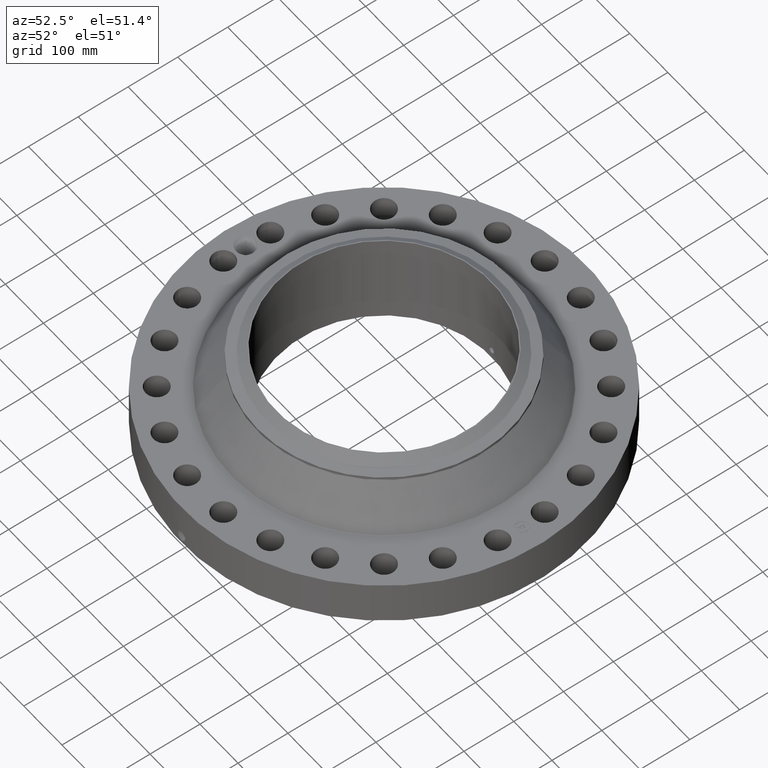
[diagram: clean part render]
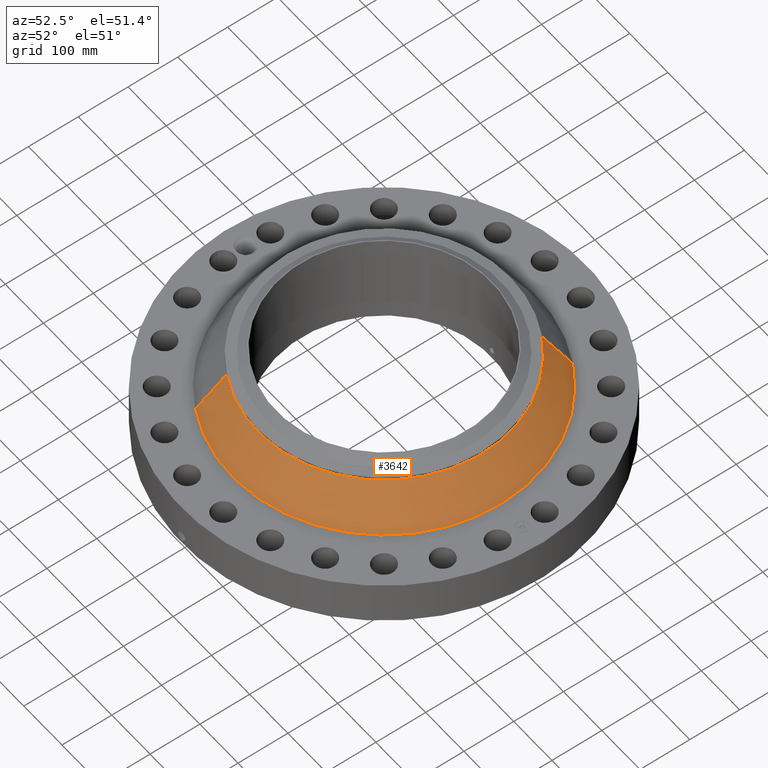
[diagram: same view with one face highlighted and labeled with its STEP entity id]
A machine part, auxiliary view. The second image highlights one B-rep face of the part: STEP entity #3642.
In plain terms, the highlighted conical surface has half-angle 32.681 deg.
Its self-contained STEP definition (entity closure, byte-faithful):
#2917=AXIS2_PLACEMENT_3D('Circle Axis2P3D',#2915,#2916,$) ;
#3615=AXIS2_PLACEMENT_3D('Cone Axis2P3D',#3612,#3613,#3614) ;
#3626=AXIS2_PLACEMENT_3D('Circle Axis2P3D',#3624,#3625,$) ;
#2912=CARTESIAN_POINT('Vertex',(5.73612767656,10.4999112821,3.80520506604)) ;
#2915=CARTESIAN_POINT('Axis2P3D Location',(0.,0.,3.80520506604)) ;
#2919=CARTESIAN_POINT('Vertex',(-5.73612767656,-10.4999112821,3.80520506604)) ;
#3612=CARTESIAN_POINT('Axis2P3D Location',(0.,0.,6.86762188479)) ;
#3617=CARTESIAN_POINT('Line Origine',(5.26519153131,9.63786845053,5.33641347541)) ;
#3621=CARTESIAN_POINT('Vertex',(4.79425538606,8.77582561894,6.86762188479)) ;
#3624=CARTESIAN_POINT('Axis2P3D Location',(0.,0.,6.86762188479)) ;
#3628=CARTESIAN_POINT('Vertex',(-4.79425538606,-8.77582561894,6.86762188479)) ;
#3631=CARTESIAN_POINT('Line Origine',(-5.26519153131,-9.63786845053,5.33641347541)) ;
#2916=DIRECTION('Axis2P3D Direction',(0.,0.,-0.0393700787402)) ;
#3613=DIRECTION('Axis2P3D Direction',(0.,0.,-0.0393700787402)) ;
#3614=DIRECTION('Axis2P3D XDirection',(-0.0188750212049,-0.0345504945626,0.)) ;
#3618=DIRECTION('Vector Direction',(0.010191714606,0.0186558084496,-0.0331374842812)) ;
#3625=DIRECTION('Axis2P3D Direction',(0.,0.,-0.0393700787402)) ;
#3632=DIRECTION('Vector Direction',(-0.010191714606,-0.0186558084496,-0.0331374842812)) ;
#3619=VECTOR('Line Direction',#3618,0.0393700787402) ;
#3633=VECTOR('Line Direction',#3632,0.0393700787402) ;
#3637=ORIENTED_EDGE('',*,*,#2921,.F.) ;
#3638=ORIENTED_EDGE('',*,*,#3623,.T.) ;
#3639=ORIENTED_EDGE('',*,*,#3630,.T.) ;
#3640=ORIENTED_EDGE('',*,*,#3635,.F.) ;
#3642=ADVANCED_FACE('PartBody',(#3641),#3616,.T.) ;
#2918=CIRCLE('generated circle',#2917,11.9645851434) ;
#3627=CIRCLE('generated circle',#3626,10.) ;
#3616=CONICAL_SURFACE('Cone',#3615,10.,0.570386951434) ;
#2921=EDGE_CURVE('',#2913,#2920,#2918,.T.) ;
#3623=EDGE_CURVE('',#2913,#3622,#3620,.F.) ;
#3630=EDGE_CURVE('',#3622,#3629,#3627,.T.) ;
#3635=EDGE_CURVE('',#2920,#3629,#3634,.F.) ;
#3636=EDGE_LOOP('',(#3637,#3638,#3639,#3640)) ;
#3641=FACE_OUTER_BOUND('',#3636,.T.) ;
#3620=LINE('Line',#3617,#3619) ;
#3634=LINE('Line',#3631,#3633) ;
#2913=VERTEX_POINT('',#2912) ;
#2920=VERTEX_POINT('',#2919) ;
#3622=VERTEX_POINT('',#3621) ;
#3629=VERTEX_POINT('',#3628) ;